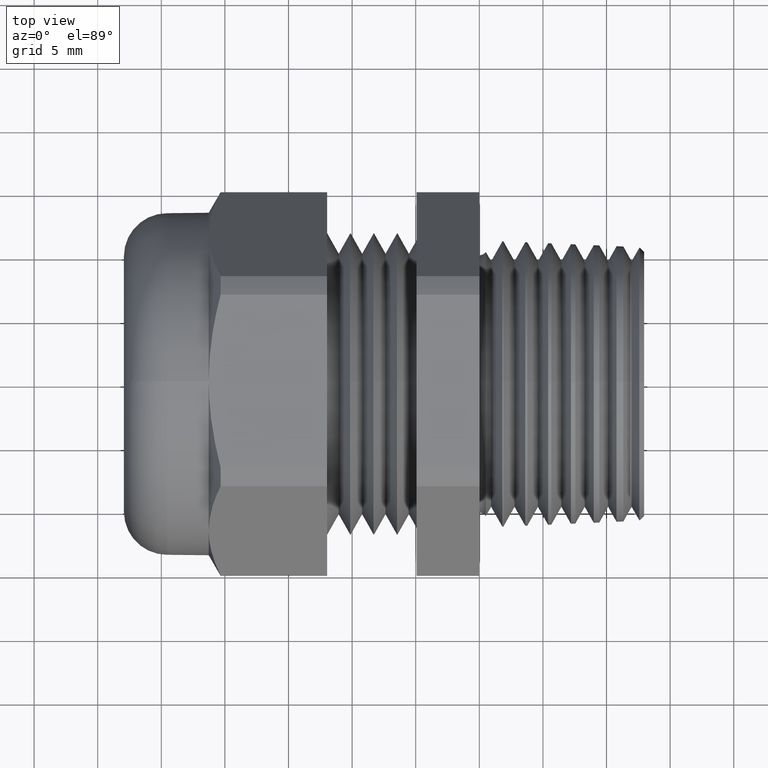
[diagram: clean part render]
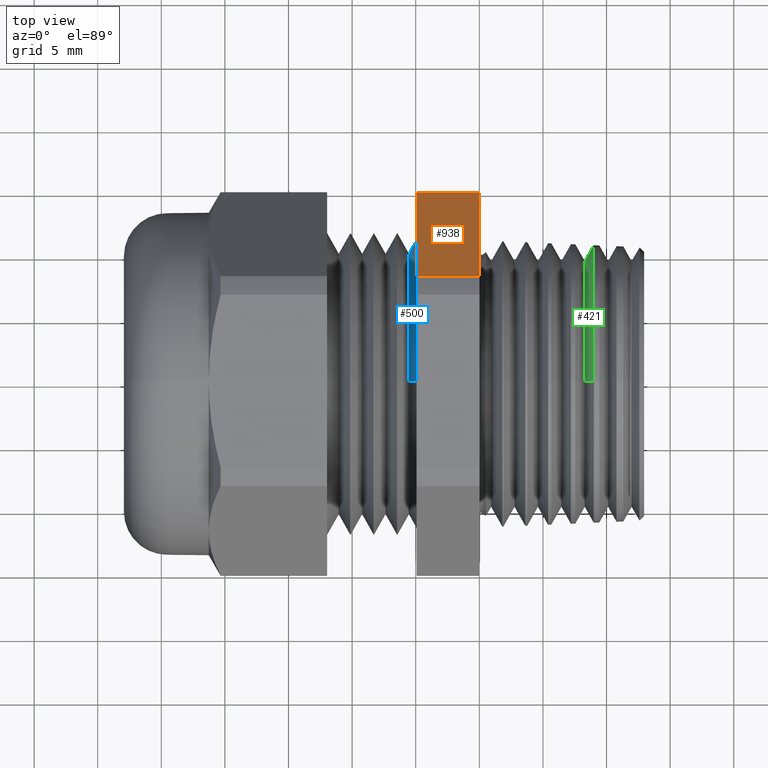
[diagram: same view with three faces highlighted in distinct colors, each labeled with its STEP entity id]
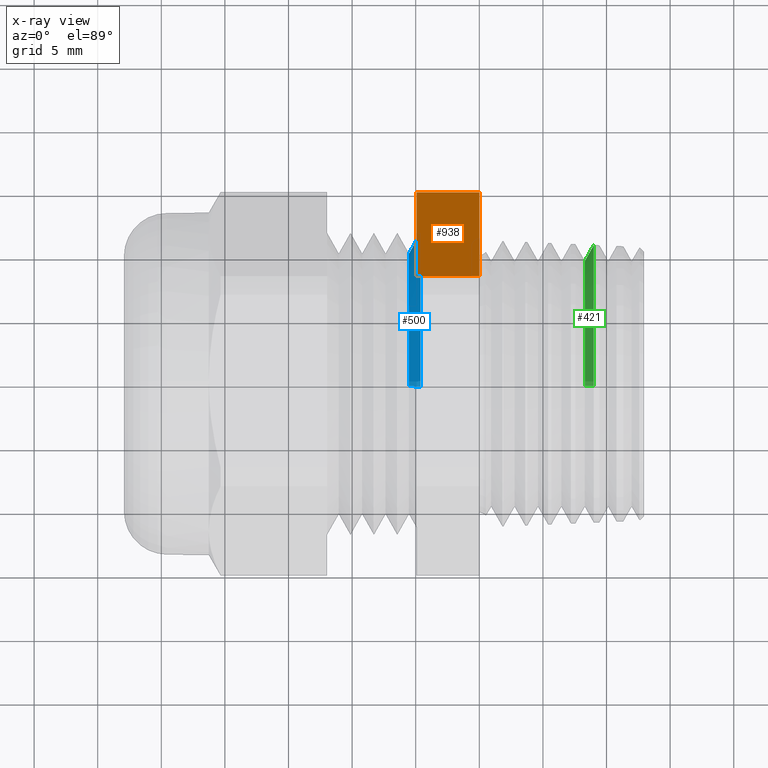
[diagram: x-ray of the same camera — body ghosted, the three highlighted faces saturated]
A machine part, top view with three faces highlighted in distinct colors.
The next image is the same camera in x-ray (body ghosted, the three faces saturated) — at least one of them is partly hidden behind the body in this view.
Their STEP definitions:

[orange] entity #938 — the highlighted planar face has unit normal (0, 0.866, 0.5).
#25 = EDGE_CURVE ( 'NONE', #27, #26, #1238, .T. ) ;
#26 = VERTEX_POINT ( 'NONE', #1234 ) ;
#27 = VERTEX_POINT ( 'NONE', #1233 ) ;
#764 = EDGE_CURVE ( 'NONE', #841, #27, #2695, .T. ) ;
#821 = EDGE_CURVE ( 'NONE', #822, #26, #2834, .T. ) ;
#822 = VERTEX_POINT ( 'NONE', #2827 ) ;
#841 = VERTEX_POINT ( 'NONE', #2854 ) ;
#862 = EDGE_CURVE ( 'NONE', #841, #822, #2836, .T. ) ;
#938 = ADVANCED_FACE ( 'NONE', ( #2933 ), #2932, .T. ) ;
#939 = EDGE_LOOP ( 'NONE', ( #940, #941, #942, #994 ) ) ;
#940 = ORIENTED_EDGE ( 'NONE', *, *, #862, .T. ) ;
#941 = ORIENTED_EDGE ( 'NONE', *, *, #821, .T. ) ;
#942 = ORIENTED_EDGE ( 'NONE', *, *, #25, .F. ) ;
#994 = ORIENTED_EDGE ( 'NONE', *, *, #764, .F. ) ;
#1233 = CARTESIAN_POINT ( 'NONE',  ( 0.0000000000000000000, 0.5926543782626885200, 0.03349250552087933200 ) ) ;
#1234 = CARTESIAN_POINT ( 'NONE',  ( 0.0000000000000000000, 0.3253325497488162000, 0.4965074944791207400 ) ) ;
#1235 = DIRECTION ( 'NONE',  ( 0.0000000000000000000, -0.5000000000000001100, 0.8660254037844386000 ) ) ;
#1236 = VECTOR ( 'NONE', #1235, 39.37007874015748100 ) ;
#1237 = CARTESIAN_POINT ( 'NONE',  ( 0.0000000000000000000, 0.5926543782626886300, 0.03349250552087932500 ) ) ;
#1238 = LINE ( 'NONE', #1237, #1236 ) ;
#2692 = DIRECTION ( 'NONE',  ( 1.000000000000000000, 0.0000000000000000000, 0.0000000000000000000 ) ) ;
#2693 = VECTOR ( 'NONE', #2692, 39.37007874015748100 ) ;
#2694 = CARTESIAN_POINT ( 'NONE',  ( -2.533243884661831900, 0.5926543782626885200, 0.03349250552087933200 ) ) ;
#2695 = LINE ( 'NONE', #2694, #2693 ) ;
#2827 = CARTESIAN_POINT ( 'NONE',  ( -0.1940298507462685800, 0.3253325497488162000, 0.4965074944791207400 ) ) ;
#2828 = DIRECTION ( 'NONE',  ( 1.000000000000000000, 0.0000000000000000000, 0.0000000000000000000 ) ) ;
#2829 = VECTOR ( 'NONE', #2828, 39.37007874015748100 ) ;
#2830 = CARTESIAN_POINT ( 'NONE',  ( -2.533243884661831900, 0.3253325497488162000, 0.4965074944791207400 ) ) ;
#2834 = LINE ( 'NONE', #2830, #2829 ) ;
#2835 = CARTESIAN_POINT ( 'NONE',  ( -0.1940298507462687200, 0.5755934640057525100, 0.06304287583746889800 ) ) ;
#2836 = LINE ( 'NONE', #2835, #2899 ) ;
#2854 = CARTESIAN_POINT ( 'NONE',  ( -0.1940298507462687200, 0.5926543782626886300, 0.03349250552087922100 ) ) ;
#2898 = DIRECTION ( 'NONE',  ( 0.0000000000000000000, -0.5000000000000001100, 0.8660254037844386000 ) ) ;
#2899 = VECTOR ( 'NONE', #2898, 39.37007874015748100 ) ;
#2932 = PLANE ( 'NONE',  #2998 ) ;
#2933 = FACE_OUTER_BOUND ( 'NONE', #939, .T. ) ;
#2995 = DIRECTION ( 'NONE',  ( 0.0000000000000000000, -0.5000000000000001100, 0.8660254037844386000 ) ) ;
#2996 = DIRECTION ( 'NONE',  ( 0.0000000000000000000, 0.8660254037844386000, 0.5000000000000001100 ) ) ;
#2997 = CARTESIAN_POINT ( 'NONE',  ( -2.533243884661831900, 0.5926543782626886300, 0.03349250552087932500 ) ) ;
#2998 = AXIS2_PLACEMENT_3D ( 'NONE', #2997, #2996, #2995 ) ;

[blue] entity #500 — the highlighted conical surface has half-angle 60 deg.
#90 = EDGE_LOOP ( 'NONE', ( #501, #508, #511, #192 ) ) ;
#191 = EDGE_CURVE ( 'NONE', #495, #513, #1548, .T. ) ;
#192 = ORIENTED_EDGE ( 'NONE', *, *, #191, .F. ) ;
#495 = VERTEX_POINT ( 'NONE', #2106 ) ;
#500 = ADVANCED_FACE ( 'NONE', ( #2157 ), #2156, .T. ) ;
#501 = ORIENTED_EDGE ( 'NONE', *, *, #518, .T. ) ;
#508 = ORIENTED_EDGE ( 'NONE', *, *, #509, .T. ) ;
#509 = EDGE_CURVE ( 'NONE', #519, #510, #2141, .T. ) ;
#510 = VERTEX_POINT ( 'NONE', #2137 ) ;
#511 = ORIENTED_EDGE ( 'NONE', *, *, #512, .F. ) ;
#512 = EDGE_CURVE ( 'NONE', #513, #510, #2136, .T. ) ;
#513 = VERTEX_POINT ( 'NONE', #2131 ) ;
#518 = EDGE_CURVE ( 'NONE', #495, #519, #1882, .T. ) ;
#519 = VERTEX_POINT ( 'NONE', #2191 ) ;
#1542 = DIRECTION ( 'NONE',  ( 0.5000000000000027800, 0.0000000000000000000, -0.8660254037844369300 ) ) ;
#1543 = VECTOR ( 'NONE', #1542, 39.37007874015748100 ) ;
#1544 = CARTESIAN_POINT ( 'NONE',  ( -0.2178333499851235200, 0.0000000000000000000, -0.4045410714285714900 ) ) ;
#1548 = LINE ( 'NONE', #1544, #1543 ) ;
#1882 = CIRCLE ( 'NONE', #2195, 0.4045410714285714900 ) ;
#2106 = CARTESIAN_POINT ( 'NONE',  ( -0.2178333499851235200, 0.0000000000000000000, -0.4045410714285714900 ) ) ;
#2131 = CARTESIAN_POINT ( 'NONE',  ( -0.1821190809226271600, 0.0000000000000000000, -0.4664000000000000400 ) ) ;
#2132 = DIRECTION ( 'NONE',  ( 0.0000000000000000000, 0.0000000000000000000, -1.000000000000000000 ) ) ;
#2133 = DIRECTION ( 'NONE',  ( 1.000000000000000000, 0.0000000000000000000, 0.0000000000000000000 ) ) ;
#2134 = CARTESIAN_POINT ( 'NONE',  ( -0.1821190809226271600, 0.0000000000000000000, 0.0000000000000000000 ) ) ;
#2135 = AXIS2_PLACEMENT_3D ( 'NONE', #2134, #2133, #2132 ) ;
#2136 = CIRCLE ( 'NONE', #2135, 0.4664000000000000400 ) ;
#2137 = CARTESIAN_POINT ( 'NONE',  ( -0.1821190809226271600, 5.711752671223256000E-017, 0.4664000000000000400 ) ) ;
#2138 = DIRECTION ( 'NONE',  ( 0.5000000000000027800, 1.060575238724904800E-016, 0.8660254037844369300 ) ) ;
#2139 = VECTOR ( 'NONE', #2138, 39.37007874015748100 ) ;
#2140 = CARTESIAN_POINT ( 'NONE',  ( -0.2178333499851235200, 4.954199282486408100E-017, 0.4045410714285714900 ) ) ;
#2141 = LINE ( 'NONE', #2140, #2139 ) ;
#2152 = DIRECTION ( 'NONE',  ( 0.0000000000000000000, 0.0000000000000000000, -1.000000000000000000 ) ) ;
#2153 = DIRECTION ( 'NONE',  ( 1.000000000000000000, 0.0000000000000000000, 0.0000000000000000000 ) ) ;
#2154 = CARTESIAN_POINT ( 'NONE',  ( -0.2178333499851235200, 0.0000000000000000000, 0.0000000000000000000 ) ) ;
#2155 = AXIS2_PLACEMENT_3D ( 'NONE', #2154, #2153, #2152 ) ;
#2156 = CONICAL_SURFACE ( 'NONE', #2155, 0.4045410714285714900, 1.047197551196594500 ) ;
#2157 = FACE_OUTER_BOUND ( 'NONE', #90, .T. ) ;
#2191 = CARTESIAN_POINT ( 'NONE',  ( -0.2178333499851235200, 5.332975976854832300E-017, 0.4045410714285714900 ) ) ;
#2192 = DIRECTION ( 'NONE',  ( 0.0000000000000000000, 0.0000000000000000000, -1.000000000000000000 ) ) ;
#2193 = DIRECTION ( 'NONE',  ( 1.000000000000000000, 0.0000000000000000000, 0.0000000000000000000 ) ) ;
#2194 = CARTESIAN_POINT ( 'NONE',  ( -0.2178333499851235200, 0.0000000000000000000, 0.0000000000000000000 ) ) ;
#2195 = AXIS2_PLACEMENT_3D ( 'NONE', #2194, #2193, #2192 ) ;

[green] entity #421 — the highlighted conical surface has half-angle 60 deg.
#399 = EDGE_LOOP ( 'NONE', ( #436, #408, #422, #434 ) ) ;
#408 = ORIENTED_EDGE ( 'NONE', *, *, #409, .T. ) ;
#409 = EDGE_CURVE ( 'NONE', #419, #410, #1962, .T. ) ;
#410 = VERTEX_POINT ( 'NONE', #1954 ) ;
#419 = VERTEX_POINT ( 'NONE', #2002 ) ;
#420 = VERTEX_POINT ( 'NONE', #2001 ) ;
#421 = ADVANCED_FACE ( 'NONE', ( #2000 ), #1997, .T. ) ;
#422 = ORIENTED_EDGE ( 'NONE', *, *, #423, .T. ) ;
#423 = EDGE_CURVE ( 'NONE', #410, #424, #1998, .T. ) ;
#424 = VERTEX_POINT ( 'NONE', #1989 ) ;
#434 = ORIENTED_EDGE ( 'NONE', *, *, #435, .F. ) ;
#435 = EDGE_CURVE ( 'NONE', #420, #424, #1976, .T. ) ;
#436 = ORIENTED_EDGE ( 'NONE', *, *, #437, .F. ) ;
#437 = EDGE_CURVE ( 'NONE', #419, #420, #2033, .T. ) ;
#1954 = CARTESIAN_POINT ( 'NONE',  ( 0.3541328795961218900, 0.0000000000000000000, 0.4295382245619267500 ) ) ;
#1955 = DIRECTION ( 'NONE',  ( 0.5000000000000013300, 1.060575238724905700E-016, 0.8660254037844377100 ) ) ;
#1956 = VECTOR ( 'NONE', #1955, 39.37007874015748900 ) ;
#1957 = CARTESIAN_POINT ( 'NONE',  ( 0.3263870127608625200, 4.671794531363377600E-017, 0.3814809735032225800 ) ) ;
#1962 = LINE ( 'NONE', #1957, #1956 ) ;
#1976 = LINE ( 'NONE', #2036, #2035 ) ;
#1989 = CARTESIAN_POINT ( 'NONE',  ( 0.3541328795961218900, 5.260326118212005900E-017, -0.4295382245619267500 ) ) ;
#1990 = DIRECTION ( 'NONE',  ( 0.0000000000000000000, 0.0000000000000000000, -1.000000000000000000 ) ) ;
#1991 = DIRECTION ( 'NONE',  ( -1.000000000000000000, 0.0000000000000000000, 0.0000000000000000000 ) ) ;
#1992 = CARTESIAN_POINT ( 'NONE',  ( 0.3541328795961218900, 0.0000000000000000000, 0.0000000000000000000 ) ) ;
#1993 = AXIS2_PLACEMENT_3D ( 'NONE', #1992, #1991, #1990 ) ;
#1994 = DIRECTION ( 'NONE',  ( 0.0000000000000000000, 0.0000000000000000000, -1.000000000000000000 ) ) ;
#1995 = DIRECTION ( 'NONE',  ( 1.000000000000000000, 0.0000000000000000000, 0.0000000000000000000 ) ) ;
#1996 = AXIS2_PLACEMENT_3D ( 'NONE', #1999, #1995, #1994 ) ;
#1997 = CONICAL_SURFACE ( 'NONE', #1996, 0.3814809735032225800, 1.047197551196596100 ) ;
#1998 = CIRCLE ( 'NONE', #1993, 0.4295382245619267000 ) ;
#1999 = CARTESIAN_POINT ( 'NONE',  ( 0.3263870127608625200, 0.0000000000000000000, 0.0000000000000000000 ) ) ;
#2000 = FACE_OUTER_BOUND ( 'NONE', #399, .T. ) ;
#2001 = CARTESIAN_POINT ( 'NONE',  ( 0.3263870127608625200, 4.981279466143070900E-017, -0.3814809735032225800 ) ) ;
#2002 = CARTESIAN_POINT ( 'NONE',  ( 0.3263870127608625200, 0.0000000000000000000, 0.3814809735032225800 ) ) ;
#2029 = DIRECTION ( 'NONE',  ( 0.0000000000000000000, 0.0000000000000000000, 1.000000000000000000 ) ) ;
#2030 = DIRECTION ( 'NONE',  ( -1.000000000000000000, 0.0000000000000000000, 0.0000000000000000000 ) ) ;
#2031 = CARTESIAN_POINT ( 'NONE',  ( 0.3263870127608625200, 0.0000000000000000000, 0.0000000000000000000 ) ) ;
#2032 = AXIS2_PLACEMENT_3D ( 'NONE', #2031, #2030, #2029 ) ;
#2033 = CIRCLE ( 'NONE', #2032, 0.3814809735032225800 ) ;
#2034 = DIRECTION ( 'NONE',  ( 0.5000000000000013300, 0.0000000000000000000, -0.8660254037844377100 ) ) ;
#2035 = VECTOR ( 'NONE', #2034, 39.37007874015748900 ) ;
#2036 = CARTESIAN_POINT ( 'NONE',  ( 0.3263870127608625200, 0.0000000000000000000, -0.3814809735032225800 ) ) ;